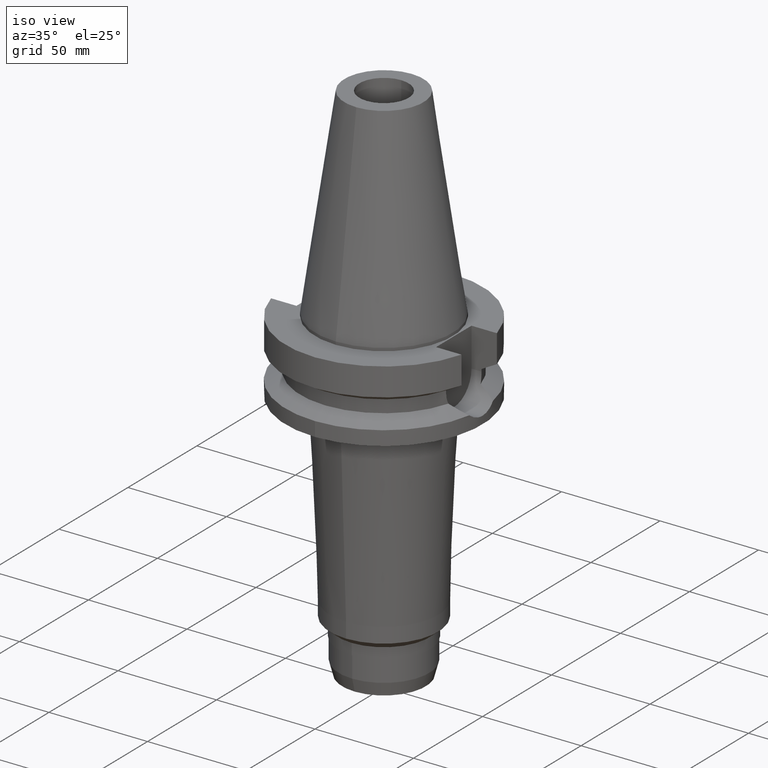
[diagram: clean part render]
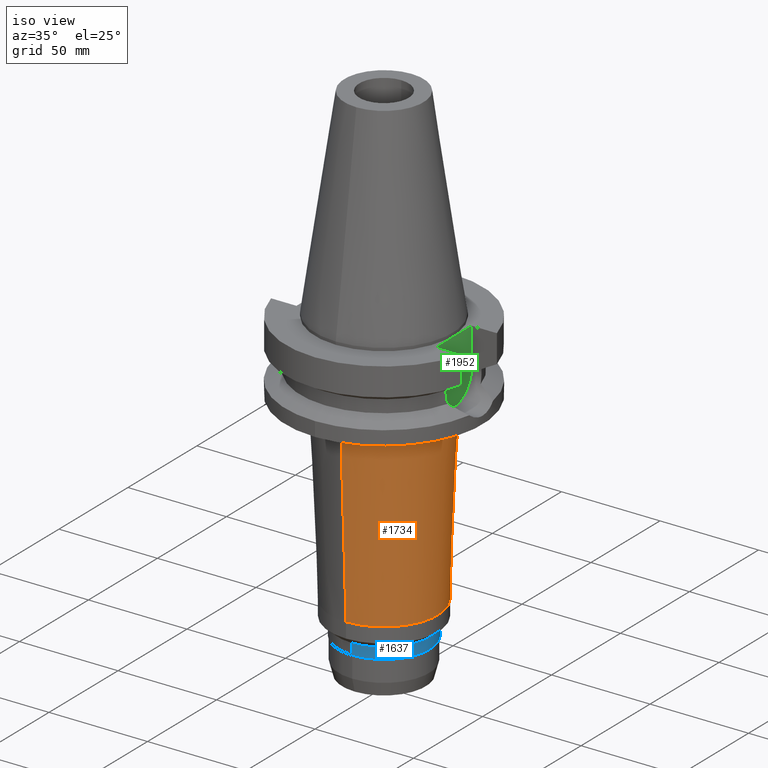
[diagram: same view with three faces highlighted in distinct colors, each labeled with its STEP entity id]
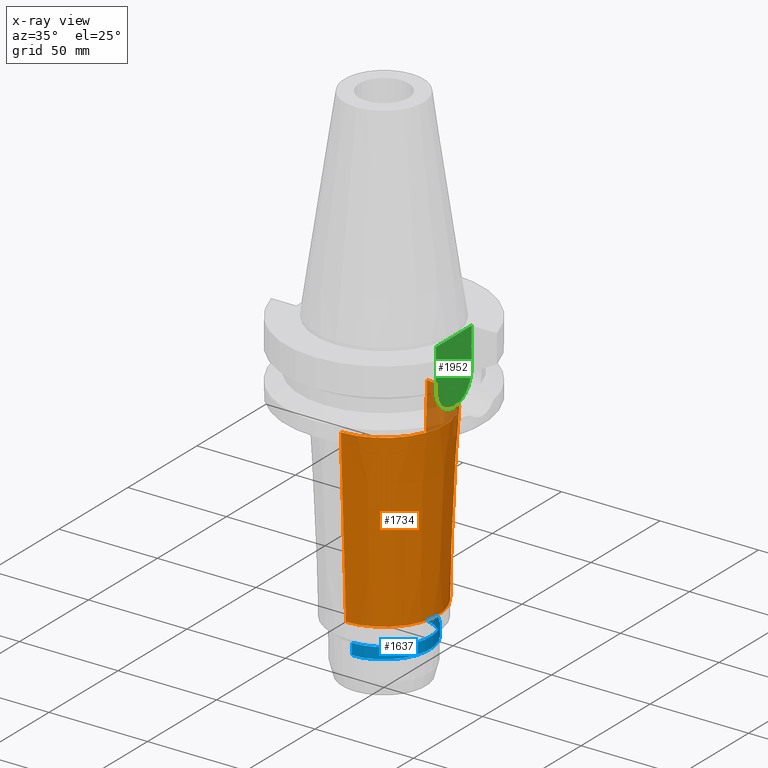
[diagram: x-ray of the same camera — body ghosted, the three highlighted faces saturated]
A machine part, iso view with three faces highlighted in distinct colors.
The next image is the same camera in x-ray (body ghosted, the three faces saturated) — at least one of them is partly hidden behind the body in this view.
Their STEP definitions:

[orange] entity #1734 — the highlighted conical surface has half-angle 2.452 deg.
#428=DIRECTION('',(0.E0,4.279113013007E-2,-9.990840400998E-1));
#429=VECTOR('',#428,8.848104508923E1);
#430=CARTESIAN_POINT('',(0.E0,-3.128620391446E1,-4.3E1));
#431=LINE('',#430,#429);
#443=DIRECTION('',(0.E0,-4.279113013007E-2,-9.990840400998E-1));
#444=VECTOR('',#443,8.848104508923E1);
#445=CARTESIAN_POINT('',(0.E0,3.128620391446E1,-4.3E1));
#446=LINE('',#445,#444);
#450=CARTESIAN_POINT('',(0.E0,0.E0,-1.314E2));
#451=DIRECTION('',(0.E0,0.E0,-1.E0));
#452=DIRECTION('',(0.E0,1.E0,0.E0));
#453=AXIS2_PLACEMENT_3D('',#450,#451,#452);
#458=CARTESIAN_POINT('',(0.E0,0.E0,-4.3E1));
#459=DIRECTION('',(0.E0,0.E0,1.E0));
#460=DIRECTION('',(0.E0,-1.E0,0.E0));
#461=AXIS2_PLACEMENT_3D('',#458,#459,#460);
#1196=CARTESIAN_POINT('',(0.E0,2.75E1,-1.314E2));
#1197=VERTEX_POINT('',#1196);
#1198=CARTESIAN_POINT('',(0.E0,-2.75E1,-1.314E2));
#1199=VERTEX_POINT('',#1198);
#1200=CARTESIAN_POINT('',(0.E0,3.128620391446E1,-4.3E1));
#1201=VERTEX_POINT('',#1200);
#1202=CARTESIAN_POINT('',(0.E0,-3.128620391446E1,-4.3E1));
#1203=VERTEX_POINT('',#1202);
#1722=CARTESIAN_POINT('',(0.E0,0.E0,-8.72E1));
#1723=DIRECTION('',(0.E0,0.E0,1.E0));
#1724=DIRECTION('',(0.E0,1.E0,0.E0));
#1725=AXIS2_PLACEMENT_3D('',#1722,#1723,#1724);
#1726=CONICAL_SURFACE('',#1725,2.939310195723E1,2.4525E0);
#1727=ORIENTED_EDGE('',*,*,#1712,.T.);
#1728=ORIENTED_EDGE('',*,*,#1689,.T.);
#1729=ORIENTED_EDGE('',*,*,#1716,.F.);
#1731=ORIENTED_EDGE('',*,*,#1730,.T.);
#1732=EDGE_LOOP('',(#1727,#1728,#1729,#1731));
#1733=FACE_OUTER_BOUND('',#1732,.F.);
#454=CIRCLE('',#453,2.75E1);
#462=CIRCLE('',#461,3.128620391446E1);
#1689=EDGE_CURVE('',#1197,#1199,#454,.T.);
#1712=EDGE_CURVE('',#1201,#1197,#446,.T.);
#1716=EDGE_CURVE('',#1203,#1199,#431,.T.);
#1730=EDGE_CURVE('',#1203,#1201,#462,.T.);
#1734=ADVANCED_FACE('',(#1733),#1726,.T.);

[blue] entity #1637 — the highlighted cylindrical surface (partial cylindrical patch) has radius 23.35 mm, axis along (0, 0, -1).
#322=CARTESIAN_POINT('',(0.E0,2.636174699845E-14,-1.483E2));
#323=DIRECTION('',(0.E0,0.E0,1.E0));
#324=DIRECTION('',(0.E0,-1.E0,0.E0));
#325=AXIS2_PLACEMENT_3D('',#322,#323,#324);
#354=DIRECTION('',(0.E0,3.047780711172E-12,-1.E0));
#355=VECTOR('',#354,5.643019806520E0);
#356=CARTESIAN_POINT('',(0.E0,2.334999999998E1,-1.426569801935E2));
#357=LINE('',#356,#355);
#361=DIRECTION('',(0.E0,-3.046521557811E-12,-1.E0));
#362=VECTOR('',#361,5.643019806520E0);
#363=CARTESIAN_POINT('',(0.E0,-2.334999999998E1,-1.426569801935E2));
#364=LINE('',#363,#362);
#398=CARTESIAN_POINT('',(0.E0,0.E0,-1.426569801935E2));
#399=DIRECTION('',(0.E0,0.E0,-1.E0));
#400=DIRECTION('',(0.E0,1.E0,0.E0));
#401=AXIS2_PLACEMENT_3D('',#398,#399,#400);
#1184=CARTESIAN_POINT('',(0.E0,-2.335E1,-1.483E2));
#1185=CARTESIAN_POINT('',(0.E0,2.335E1,-1.483E2));
#1186=VERTEX_POINT('',#1184);
#1187=VERTEX_POINT('',#1185);
#1188=CARTESIAN_POINT('',(0.E0,2.334999999998E1,-1.426569801935E2));
#1189=VERTEX_POINT('',#1188);
#1190=CARTESIAN_POINT('',(0.E0,-2.334999999998E1,-1.426569801935E2));
#1191=VERTEX_POINT('',#1190);
#1623=CARTESIAN_POINT('',(0.E0,2.636174699845E-14,1.1526E2));
#1624=DIRECTION('',(0.E0,0.E0,-1.E0));
#1625=DIRECTION('',(0.E0,-1.E0,0.E0));
#1626=AXIS2_PLACEMENT_3D('',#1623,#1624,#1625);
#1627=CYLINDRICAL_SURFACE('',#1626,2.335E1);
#1629=ORIENTED_EDGE('',*,*,#1628,.T.);
#1630=ORIENTED_EDGE('',*,*,#1612,.F.);
#1632=ORIENTED_EDGE('',*,*,#1631,.F.);
#1634=ORIENTED_EDGE('',*,*,#1633,.F.);
#1635=EDGE_LOOP('',(#1629,#1630,#1632,#1634));
#1636=FACE_OUTER_BOUND('',#1635,.F.);
#326=CIRCLE('',#325,2.335E1);
#402=CIRCLE('',#401,2.334999999997E1);
#1612=EDGE_CURVE('',#1186,#1187,#326,.T.);
#1628=EDGE_CURVE('',#1189,#1187,#357,.T.);
#1631=EDGE_CURVE('',#1191,#1186,#364,.T.);
#1633=EDGE_CURVE('',#1189,#1191,#402,.T.);
#1637=ADVANCED_FACE('',(#1636),#1627,.T.);

[green] entity #1952 — the highlighted planar face has unit normal (1, 0, 0).
#753=DIRECTION('',(0.E0,0.E0,-1.E0));
#754=VECTOR('',#753,1.965E1);
#755=CARTESIAN_POINT('',(3.54E1,1.285E1,-1.5E0));
#756=LINE('',#755,#754);
#760=CARTESIAN_POINT('',(3.54E1,0.E0,-2.115E1));
#761=DIRECTION('',(-1.E0,0.E0,0.E0));
#762=DIRECTION('',(0.E0,1.E0,0.E0));
#763=AXIS2_PLACEMENT_3D('',#760,#761,#762);
#768=CARTESIAN_POINT('',(3.54E1,0.E0,-2.115E1));
#769=DIRECTION('',(-1.E0,0.E0,0.E0));
#770=DIRECTION('',(0.E0,0.E0,-1.E0));
#771=AXIS2_PLACEMENT_3D('',#768,#769,#770);
#776=DIRECTION('',(0.E0,0.E0,1.E0));
#777=VECTOR('',#776,1.965E1);
#778=CARTESIAN_POINT('',(3.54E1,-1.285E1,-2.115E1));
#779=LINE('',#778,#777);
#813=DIRECTION('',(0.E0,-1.E0,0.E0));
#814=VECTOR('',#813,2.57E1);
#815=CARTESIAN_POINT('',(3.54E1,1.285E1,-1.5E0));
#816=LINE('',#815,#814);
#1221=CARTESIAN_POINT('',(3.54E1,-1.285E1,-2.115E1));
#1222=VERTEX_POINT('',#1221);
#1223=CARTESIAN_POINT('',(3.54E1,0.E0,-3.4E1));
#1224=VERTEX_POINT('',#1223);
#1225=CARTESIAN_POINT('',(3.54E1,1.285E1,-2.115E1));
#1226=VERTEX_POINT('',#1225);
#1273=CARTESIAN_POINT('',(3.54E1,1.285E1,-1.5E0));
#1274=VERTEX_POINT('',#1273);
#1275=CARTESIAN_POINT('',(3.54E1,-1.285E1,-1.5E0));
#1276=VERTEX_POINT('',#1275);
#1938=CARTESIAN_POINT('',(3.54E1,0.E0,0.E0));
#1939=DIRECTION('',(1.E0,0.E0,0.E0));
#1940=DIRECTION('',(0.E0,0.E0,-1.E0));
#1941=AXIS2_PLACEMENT_3D('',#1938,#1939,#1940);
#1942=PLANE('',#1941);
#1944=ORIENTED_EDGE('',*,*,#1943,.F.);
#1945=ORIENTED_EDGE('',*,*,#1927,.T.);
#1946=ORIENTED_EDGE('',*,*,#1815,.T.);
#1947=ORIENTED_EDGE('',*,*,#1813,.T.);
#1949=ORIENTED_EDGE('',*,*,#1948,.T.);
#1950=EDGE_LOOP('',(#1944,#1945,#1946,#1947,#1949));
#1951=FACE_OUTER_BOUND('',#1950,.F.);
#764=CIRCLE('',#763,1.285E1);
#772=CIRCLE('',#771,1.285E1);
#1813=EDGE_CURVE('',#1224,#1222,#772,.T.);
#1815=EDGE_CURVE('',#1226,#1224,#764,.T.);
#1927=EDGE_CURVE('',#1274,#1226,#756,.T.);
#1943=EDGE_CURVE('',#1274,#1276,#816,.T.);
#1948=EDGE_CURVE('',#1222,#1276,#779,.T.);
#1952=ADVANCED_FACE('',(#1951),#1942,.T.);